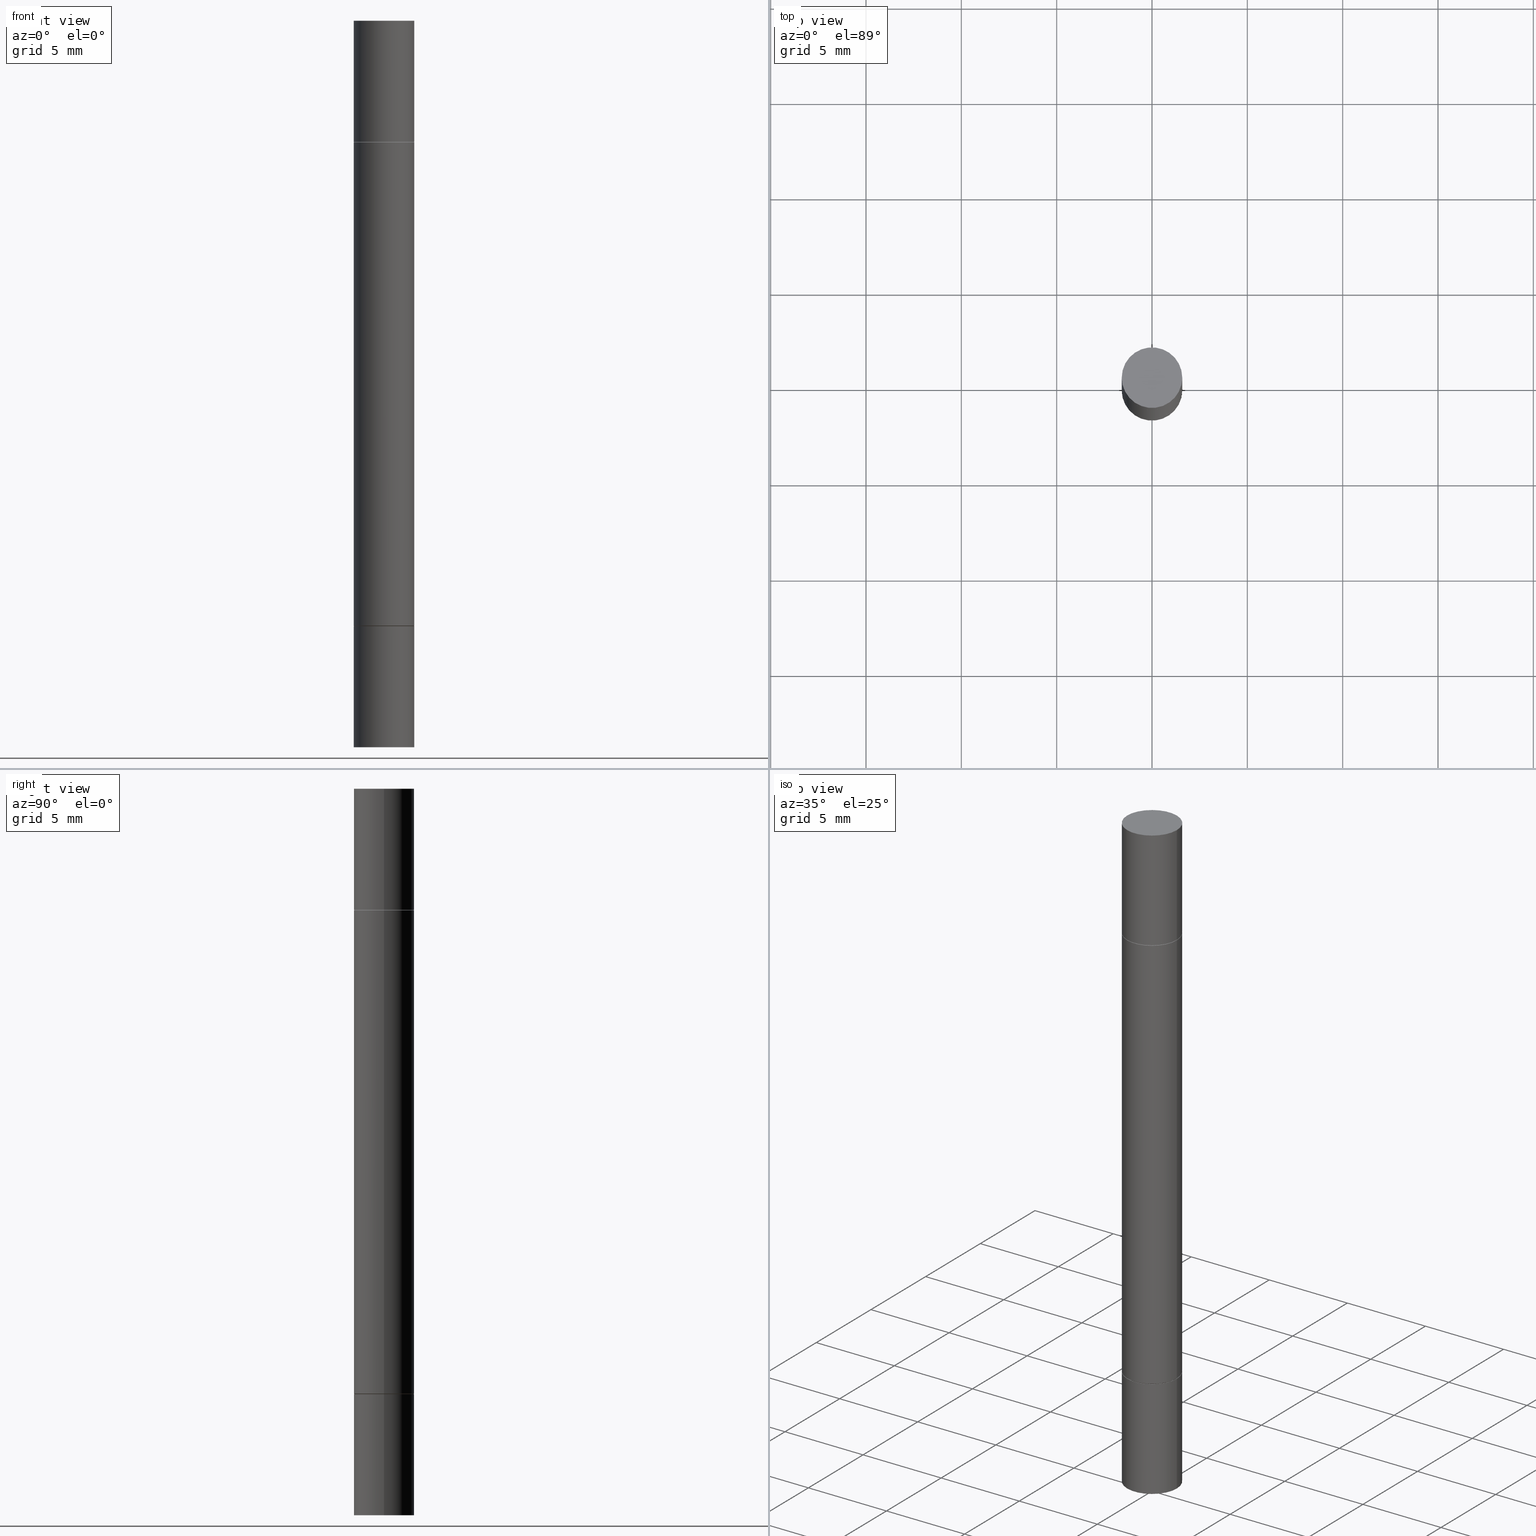
[diagram: canonical four-view strip — front | top / right | iso, engineering-drawing reading convention]
A machine part, canonical four-view strip (front | top / right | iso — engineering-drawing reading convention). The complete STEP part file that produces these views, byte-faithful:
ISO-10303-21;
HEADER;
FILE_DESCRIPTION (( 'STEP AP203' ),
    '1' );
FILE_NAME ('39663.STEP',
    '2024-03-04T15:43:55',
    ( '' ),
    ( '' ),
    'SwSTEP 2.0',
    'SolidWorks 2023',
    '' );
FILE_SCHEMA (( 'CONFIG_CONTROL_DESIGN' ));
ENDSEC;

DATA;
#1 = DIRECTION ( 'NONE',  ( -2.445468806185136597E-29, -3.492890411551752677E-15, -1.000000000000000000 ) ) ;
#2 = CARTESIAN_POINT ( 'NONE',  ( 3.056836007731421306E-29, -8.721657983564820597E-16, -0.2499999999999998057 ) ) ;
#3 = CARTESIAN_POINT ( 'NONE',  ( 3.054390538925235704E-29, -8.756586887680336100E-16, -0.2509999999999998899 ) ) ;
#4 = CC_DESIGN_PERSON_AND_ORGANIZATION_ASSIGNMENT ( #563, #444, ( #68 ) ) ;
#5 = DIRECTION ( 'NONE',  ( 1.000000000000000000, -6.982962677686265922E-15, 9.839502134516470631E-33 ) ) ;
#6 = ADVANCED_FACE ( 'NONE', ( #318 ), #654, .T. ) ;
#7 = PLANE ( 'NONE',  #325 ) ;
#8 = ADVANCED_FACE ( 'NONE', ( #198 ), #224, .T. ) ;
#9 = DIRECTION ( 'NONE',  ( 1.000000000000000000, -6.982962677686265922E-15, 4.876176775795935793E-29 ) ) ;
#10 = ORIENTED_EDGE ( 'NONE', *, *, #440, .T. ) ;
#11 = DIRECTION ( 'NONE',  ( 2.445468806185136597E-29, 3.492890411551752677E-15, 1.000000000000000000 ) ) ;
#12 = DIRECTION ( 'NONE',  ( 2.445468806185136597E-29, 3.492890411551752677E-15, 1.000000000000000000 ) ) ;
#13 = AXIS2_PLACEMENT_3D ( 'NONE', #383, #490, #217 ) ;
#14 = CARTESIAN_POINT ( 'NONE',  ( -0.06250000000000001388, -6.773372051792008208E-18, 2.731847993664278996E-16 ) ) ;
#15 = ORIENTED_EDGE ( 'NONE', *, *, #636, .F. ) ;
#16 = LINE ( 'NONE', #598, #461 ) ;
#17 = FACE_OUTER_BOUND ( 'NONE', #484, .T. ) ;
#18 = CC_DESIGN_DATE_AND_TIME_ASSIGNMENT ( #91, #395, ( #68 ) ) ;
#19 = ORIENTED_EDGE ( 'NONE', *, *, #532, .F. ) ;
#20 = DIRECTION ( 'NONE',  ( -2.445468806185136597E-29, -3.492890411551752677E-15, -1.000000000000000000 ) ) ;
#21 = CARTESIAN_POINT ( 'NONE',  ( 3.668203209277704895E-29, -5.237222008264718177E-15, -1.500000000000000222 ) ) ;
#22 = EDGE_CURVE ( 'NONE', #439, #28, #582, .T. ) ;
#23 = EDGE_LOOP ( 'NONE', ( #381, #185 ) ) ;
#24 = PERSON_AND_ORGANIZATION_ROLE ( 'design_owner' ) ;
#25 = CIRCLE ( 'NONE', #552, 0.06249999999999996531 ) ;
#26 = AXIS2_PLACEMENT_3D ( 'NONE', #257, #11, #102 ) ;
#27 = FACE_OUTER_BOUND ( 'NONE', #425, .T. ) ;
#28 = VERTEX_POINT ( 'NONE', #626 ) ;
#29 = CARTESIAN_POINT ( 'NONE',  ( -0.06250000000000001388, 4.440892098500627148E-16, -3.074334431409317165E-30 ) ) ;
#30 = DIRECTION ( 'NONE',  ( -2.445468806185136597E-29, -3.492890411551752677E-15, -1.000000000000000000 ) ) ;
#31 = ORIENTED_EDGE ( 'NONE', *, *, #228, .T. ) ;
#32 = APPLICATION_CONTEXT ( 'configuration controlled 3d designs of mechanical parts and assemblies' ) ;
#33 = CARTESIAN_POINT ( 'NONE',  ( 0.000000000000000000, 0.000000000000000000, 0.000000000000000000 ) ) ;
#34 = ORIENTED_EDGE ( 'NONE', *, *, #308, .T. ) ;
#35 = SECURITY_CLASSIFICATION_LEVEL ( 'unclassified' ) ;
#36 = LINE ( 'NONE', #82, #592 ) ;
#37 = CIRCLE ( 'NONE', #655, 0.06250000000000001388 ) ;
#38 = APPROVAL_PERSON_ORGANIZATION ( #165, #157, #235 ) ;
#39 = ORIENTED_EDGE ( 'NONE', *, *, #472, .F. ) ;
#40 = DATE_AND_TIME ( #497, #404 ) ;
#41 = FACE_OUTER_BOUND ( 'NONE', #658, .T. ) ;
#42 = DESIGN_CONTEXT ( 'detailed design', #446, 'design' ) ;
#43 = ORIENTED_EDGE ( 'NONE', *, *, #483, .F. ) ;
#44 = CARTESIAN_POINT ( 'NONE',  ( 3.056836007731421306E-29, -8.721657983564820597E-16, -0.2499999999999998057 ) ) ;
#45 = EDGE_LOOP ( 'NONE', ( #19, #512 ) ) ;
#46 = ADVANCED_FACE ( 'NONE', ( #97 ), #676, .T. ) ;
#47 = DIRECTION ( 'NONE',  ( 1.000000000000000000, -6.982962677686269077E-15, 0.000000000000000000 ) ) ;
#48 = VECTOR ( 'NONE', #463, 39.37007874015748854 ) ;
#49 = ORIENTED_EDGE ( 'NONE', *, *, #614, .F. ) ;
#50 = AXIS2_PLACEMENT_3D ( 'NONE', #295, #611, #246 ) ;
#51 = CARTESIAN_POINT ( 'NONE',  ( 0.06150000000000001299, -1.301618003034187616E-15, -0.2499999999999998057 ) ) ;
#52 = CARTESIAN_POINT ( 'NONE',  ( 0.06250000000000005551, -1.312093856123426167E-15, -0.2509999999999998899 ) ) ;
#53 = DIRECTION ( 'NONE',  ( 1.000000000000000000, -6.982962677686268288E-15, 0.000000000000000000 ) ) ;
#54 = FACE_OUTER_BOUND ( 'NONE', #559, .T. ) ;
#55 = CIRCLE ( 'NONE', #258, 0.06150000000000001299 ) ;
#56 = CC_DESIGN_PERSON_AND_ORGANIZATION_ASSIGNMENT ( #347, #130, ( #360 ) ) ;
#57 = VECTOR ( 'NONE', #174, 39.37007874015748143 ) ;
#58 = CARTESIAN_POINT ( 'NONE',  ( 0.06250000000000001388, -4.364351673553918173E-16, 3.047610484872460571E-30 ) ) ;
#59 = ORIENTED_EDGE ( 'NONE', *, *, #628, .F. ) ;
#60 = CARTESIAN_POINT ( 'NONE',  ( 0.06250000000000005551, -1.312093856123426167E-15, -0.2509999999999998899 ) ) ;
#61 = CARTESIAN_POINT ( 'NONE',  ( 3.056836007731421306E-29, -8.721657983564820597E-16, -0.2499999999999998057 ) ) ;
#62 = ORIENTED_EDGE ( 'NONE', *, *, #168, .T. ) ;
#63 = DIRECTION ( 'NONE',  ( -2.445468806185136597E-29, -3.492890411551752677E-15, -1.000000000000000000 ) ) ;
#64 = ORIENTED_EDGE ( 'NONE', *, *, #230, .F. ) ;
#65 = CLOSED_SHELL ( 'NONE', ( #128, #310, #241, #330 ) ) ;
#66 = CARTESIAN_POINT ( 'NONE',  ( -0.06150000000000001299, -4.485613677004229182E-16, -0.2499999999999998057 ) ) ;
#67 = AXIS2_PLACEMENT_3D ( 'NONE', #307, #311, #574 ) ;
#68 = SECURITY_CLASSIFICATION ( '', '', #35 ) ;
#69 = CARTESIAN_POINT ( 'NONE',  ( -0.06250000000000005551, -4.468775639073129860E-16, -0.2509999999999998899 ) ) ;
#70 = EDGE_LOOP ( 'NONE', ( #342, #423, #364, #247 ) ) ;
#71 = DIRECTION ( 'NONE',  ( 0.000000000000000000, 3.492185875197449524E-15, 1.000000000000000000 ) ) ;
#72 = EDGE_CURVE ( 'NONE', #578, #264, #25, .T. ) ;
#73 = DIRECTION ( 'NONE',  ( -1.000000000000000000, 6.982962677686265922E-15, -4.876176775795935793E-29 ) ) ;
#74 = ORIENTED_EDGE ( 'NONE', *, *, #368, .F. ) ;
#75 = ADVANCED_BREP_SHAPE_REPRESENTATION ( '39663', ( #528, #93, #533, #300, #526, #281 ), #634 ) ;
#76 = CARTESIAN_POINT ( 'NONE',  ( -0.06150000000000001299, -4.502451714935327518E-16, -0.2499999999999998057 ) ) ;
#77 = CARTESIAN_POINT ( 'NONE',  ( 0.000000000000000000, -5.238278812796173300E-15, -1.499999999999999778 ) ) ;
#78 = ORIENTED_EDGE ( 'NONE', *, *, #178, .F. ) ;
#79 = AXIS2_PLACEMENT_3D ( 'NONE', #162, #519, #104 ) ;
#80 = CYLINDRICAL_SURFACE ( 'NONE', #120, 0.06249999999999996531 ) ;
#81 = ORIENTED_EDGE ( 'NONE', *, *, #483, .T. ) ;
#82 = CARTESIAN_POINT ( 'NONE',  ( -0.06249999999999996531, -4.809497687935452578E-15, -1.499999999999999778 ) ) ;
#83 = ADVANCED_FACE ( 'NONE', ( #407 ), #378, .T. ) ;
#84 = ORIENTED_EDGE ( 'NONE', *, *, #532, .T. ) ;
#85 = PERSON_AND_ORGANIZATION ( #148, #679 ) ;
#86 = DIRECTION ( 'NONE',  ( 1.000000000000000000, -6.982962677686268288E-15, 0.000000000000000000 ) ) ;
#87 = EDGE_LOOP ( 'NONE', ( #597, #428, #345, #476 ) ) ;
#88 = CARTESIAN_POINT ( 'NONE',  ( 0.06150000000000001299, -1.301618003034187616E-15, -0.2499999999999998057 ) ) ;
#89 = AXIS2_PLACEMENT_3D ( 'NONE', #21, #542, #127 ) ;
#90 = ORIENTED_EDGE ( 'NONE', *, *, #614, .T. ) ;
#91 = DATE_AND_TIME ( #193, #349 ) ;
#92 = CARTESIAN_POINT ( 'NONE',  ( 3.056836007731421306E-29, -8.721657983564820597E-16, -0.2499999999999998057 ) ) ;
#93 = MANIFOLD_SOLID_BREP ( 'Mirror1[1]', #522 ) ;
#94 = DIRECTION ( 'NONE',  ( 1.000000000000000000, -6.982962677686267499E-15, 4.876176775795935793E-29 ) ) ;
#95 = COORDINATED_UNIVERSAL_TIME_OFFSET ( 5, 0, .BEHIND. ) ;
#96 = CARTESIAN_POINT ( 'NONE',  ( 3.056836007731421306E-29, -8.721657983564820597E-16, -0.2499999999999998057 ) ) ;
#97 = FACE_OUTER_BOUND ( 'NONE', #480, .T. ) ;
#98 = CARTESIAN_POINT ( 'NONE',  ( -0.06150000000000001299, -4.502451714935327518E-16, -0.2499999999999998057 ) ) ;
#99 = AXIS2_PLACEMENT_3D ( 'NONE', #372, #354, #153 ) ;
#100 = DIRECTION ( 'NONE',  ( -2.445468806185136597E-29, 3.491481338843145583E-15, 1.000000000000000000 ) ) ;
#101 = AXIS2_PLACEMENT_3D ( 'NONE', #179, #650, #599 ) ;
#102 = DIRECTION ( 'NONE',  ( 1.000000000000000000, -6.982962677686267499E-15, 0.000000000000000000 ) ) ;
#103 = LINE ( 'NONE', #58, #449 ) ;
#104 = DIRECTION ( 'NONE',  ( 1.000000000000000000, -6.982962677686267499E-15, 0.000000000000000000 ) ) ;
#105 = CIRCLE ( 'NONE', #67, 0.06250000000000005551 ) ;
#106 = ORIENTED_EDGE ( 'NONE', *, *, #22, .T. ) ;
#107 = VECTOR ( 'NONE', #280, 39.37007874015748854 ) ;
#108 = DIRECTION ( 'NONE',  ( -2.445468806185136877E-29, 3.491481338843145188E-15, 1.000000000000000000 ) ) ;
#109 = EDGE_CURVE ( 'NONE', #136, #651, #401, .T. ) ;
#110 = CARTESIAN_POINT ( 'NONE',  ( 3.056836007731421306E-29, -8.721657983564820597E-16, -0.2499999999999998057 ) ) ;
#111 = ORIENTED_EDGE ( 'NONE', *, *, #146, .T. ) ;
#112 =( NAMED_UNIT ( * ) PLANE_ANGLE_UNIT ( ) SI_UNIT ( $, .RADIAN. ) );
#113 = ORIENTED_EDGE ( 'NONE', *, *, #277, .F. ) ;
#114 = ORIENTED_EDGE ( 'NONE', *, *, #646, .T. ) ;
#115 = DIRECTION ( 'NONE',  ( -2.445468806185136877E-29, 3.491481338843145188E-15, 1.000000000000000000 ) ) ;
#116 = CARTESIAN_POINT ( 'NONE',  ( 4.364351673554284500E-16, 0.06249999999999478195, -1.500000000000000444 ) ) ;
#117 = EDGE_CURVE ( 'NONE', #583, #561, #541, .T. ) ;
#118 = VERTEX_POINT ( 'NONE', #356 ) ;
#119 = CIRCLE ( 'NONE', #379, 0.06250000000000001388 ) ;
#120 = AXIS2_PLACEMENT_3D ( 'NONE', #494, #30, #546 ) ;
#121 = CARTESIAN_POINT ( 'NONE',  ( 0.06250000000000001388, -4.353783628239354613E-16, 2.731847993664263218E-16 ) ) ;
#122 = FACE_OUTER_BOUND ( 'NONE', #447, .T. ) ;
#123 = ORIENTED_EDGE ( 'NONE', *, *, #206, .F. ) ;
#124 = CARTESIAN_POINT ( 'NONE',  ( 4.364351673554222871E-16, 0.06249999999999565625, -1.250000000000000222 ) ) ;
#125 = ORIENTED_EDGE ( 'NONE', *, *, #646, .F. ) ;
#126 = CARTESIAN_POINT ( 'NONE',  ( 0.000000000000000000, 0.000000000000000000, -0.7499999999999998890 ) ) ;
#127 = DIRECTION ( 'NONE',  ( 1.000000000000000000, -6.982962677686261189E-15, 0.000000000000000000 ) ) ;
#128 = ADVANCED_FACE ( 'NONE', ( #570 ), #352, .T. ) ;
#129 = ORIENTED_EDGE ( 'NONE', *, *, #413, .F. ) ;
#130 = PERSON_AND_ORGANIZATION_ROLE ( 'creator' ) ;
#131 = AXIS2_PLACEMENT_3D ( 'NONE', #635, #209, #207 ) ;
#132 = CARTESIAN_POINT ( 'NONE',  ( 3.056836007731421306E-29, -4.364351673553932471E-15, -1.250000000000000000 ) ) ;
#133 = EDGE_CURVE ( 'NONE', #651, #28, #501, .T. ) ;
#134 = ORIENTED_EDGE ( 'NONE', *, *, #369, .T. ) ;
#135 = CARTESIAN_POINT ( 'NONE',  ( -0.06150000000000001299, -3.922069436713247672E-15, -1.250000000000000000 ) ) ;
#136 = VERTEX_POINT ( 'NONE', #52 ) ;
#137 = CC_DESIGN_DATE_AND_TIME_ASSIGNMENT ( #450, #290, ( #203 ) ) ;
#138 = CARTESIAN_POINT ( 'NONE',  ( 3.056836007731421306E-29, -8.721657983564820597E-16, -0.2499999999999998057 ) ) ;
#139 = ORIENTED_EDGE ( 'NONE', *, *, #286, .F. ) ;
#140 = EDGE_CURVE ( 'NONE', #208, #275, #422, .T. ) ;
#141 = APPROVAL_DATE_TIME ( #40, #633 ) ;
#142 = CYLINDRICAL_SURFACE ( 'NONE', #479, 0.06250000000000001388 ) ;
#143 = AXIS2_PLACEMENT_3D ( 'NONE', #194, #620, #197 ) ;
#144 = VECTOR ( 'NONE', #627, 39.37007874015748143 ) ;
#145 = DIRECTION ( 'NONE',  ( 1.000000000000000000, -6.982962677686264344E-15, 0.000000000000000000 ) ) ;
#146 = EDGE_CURVE ( 'NONE', #561, #578, #517, .T. ) ;
#147 = CYLINDRICAL_SURFACE ( 'NONE', #524, 0.06249999999999996531 ) ;
#148 = PERSON ( 'UNSPECIFIED', 'UNSPECIFIED', 'UNSPECIFIED', ('UNSPECIFIED'), ('UNSPECIFIED'), ('UNSPECIFIED') ) ;
#149 = ORIENTED_EDGE ( 'NONE', *, *, #413, .T. ) ;
#150 = CARTESIAN_POINT ( 'NONE',  ( 4.364351673554222871E-16, 0.06249999999999914652, -0.2500000000000000555 ) ) ;
#151 = DIRECTION ( 'NONE',  ( 2.445468806185136597E-29, 3.492890411551752677E-15, 1.000000000000000000 ) ) ;
#152 = DIRECTION ( 'NONE',  ( 1.000000000000000000, -6.982962677686264344E-15, 0.000000000000000000 ) ) ;
#153 = DIRECTION ( 'NONE',  ( 1.000000000000000000, -6.982962677686268288E-15, 0.000000000000000000 ) ) ;
#154 = AXIS2_PLACEMENT_3D ( 'NONE', #199, #301, #365 ) ;
#155 = FACE_OUTER_BOUND ( 'NONE', #244, .T. ) ;
#156 = DIRECTION ( 'NONE',  ( 2.445468806185136597E-29, 3.492890411551752677E-15, 1.000000000000000000 ) ) ;
#157 = APPROVAL ( #539, 'UNSPECIFIED' ) ;
#158 = ORIENTED_EDGE ( 'NONE', *, *, #368, .T. ) ;
#159 = DIRECTION ( 'NONE',  ( -2.438088387897960049E-29, 3.491481338843145188E-15, 1.000000000000000000 ) ) ;
#160 = CIRCLE ( 'NONE', #553, 0.06150000000000001299 ) ;
#161 = CIRCLE ( 'NONE', #657, 0.06150000000000001299 ) ;
#162 = CARTESIAN_POINT ( 'NONE',  ( 3.668203209277704895E-29, 1.056804531456312920E-18, 2.731847993664263218E-16 ) ) ;
#163 = DIRECTION ( 'NONE',  ( 1.000000000000000000, -6.982962677686264344E-15, 0.000000000000000000 ) ) ;
#164 = VERTEX_POINT ( 'NONE', #263 ) ;
#165 = PERSON_AND_ORGANIZATION ( #148, #679 ) ;
#166 = LINE ( 'NONE', #556, #195 ) ;
#167 = ORIENTED_EDGE ( 'NONE', *, *, #485, .F. ) ;
#168 = EDGE_CURVE ( 'NONE', #561, #583, #391, .T. ) ;
#169 = CARTESIAN_POINT ( 'NONE',  ( 4.364351673554284500E-16, 0.06250000000000001388, 0.000000000000000000 ) ) ;
#170 = EDGE_LOOP ( 'NONE', ( #339, #278 ) ) ;
#171 = DIRECTION ( 'NONE',  ( 1.000000000000000000, 0.000000000000000000, 0.000000000000000000 ) ) ;
#172 = CARTESIAN_POINT ( 'NONE',  ( -0.06249999999999996531, -1.318353721589475380E-15, -0.7499999999999998890 ) ) ;
#173 = VERTEX_POINT ( 'NONE', #510 ) ;
#174 = DIRECTION ( 'NONE',  ( -2.445468806185136877E-29, -3.492890411551753071E-15, -1.000000000000000000 ) ) ;
#175 = CARTESIAN_POINT ( 'NONE',  ( 3.056836007731421306E-29, -8.721657983564820597E-16, -0.2499999999999998057 ) ) ;
#176 = CC_DESIGN_PERSON_AND_ORGANIZATION_ASSIGNMENT ( #388, #248, ( #203 ) ) ;
#177 = ORIENTED_EDGE ( 'NONE', *, *, #380, .F. ) ;
#178 = EDGE_CURVE ( 'NONE', #488, #173, #238, .T. ) ;
#179 = CARTESIAN_POINT ( 'NONE',  ( 0.000000000000000000, -5.238278812796173300E-15, -1.499999999999999778 ) ) ;
#180 = ORIENTED_EDGE ( 'NONE', *, *, #380, .T. ) ;
#181 = PRODUCT ( '39663', '39663', '', ( #595 ) ) ;
#182 = AXIS2_PLACEMENT_3D ( 'NONE', #409, #151, #145 ) ;
#183 = CIRCLE ( 'NONE', #631, 0.06250000000000001388 ) ;
#184 = FACE_OUTER_BOUND ( 'NONE', #70, .T. ) ;
#185 = ORIENTED_EDGE ( 'NONE', *, *, #328, .T. ) ;
#186 = DIRECTION ( 'NONE',  ( -2.438088387897959769E-29, -3.492890411551753071E-15, -1.000000000000000000 ) ) ;
#187 = DIMENSIONAL_EXPONENTS ( 1.000000000000000000, 0.000000000000000000, 0.000000000000000000, 0.000000000000000000, 0.000000000000000000, 0.000000000000000000, 0.000000000000000000 ) ;
#188 = ADVANCED_FACE ( 'NONE', ( #27 ), #660, .T. ) ;
#189 = ORIENTED_EDGE ( 'NONE', *, *, #109, .T. ) ;
#190 = COORDINATED_UNIVERSAL_TIME_OFFSET ( 5, 0, .BEHIND. ) ;
#191 = DIRECTION ( 'NONE',  ( -1.000000000000000000, 6.982962677686265922E-15, -9.839502134516470631E-33 ) ) ;
#192 = CARTESIAN_POINT ( 'NONE',  ( 3.056836007731421306E-29, -8.721657983564820597E-16, -0.2499999999999998057 ) ) ;
#193 = CALENDAR_DATE ( 2024, 4, 3 ) ;
#194 = CARTESIAN_POINT ( 'NONE',  ( 3.668203209277704895E-29, -5.237222008264718177E-15, -1.500000000000000222 ) ) ;
#195 = VECTOR ( 'NONE', #265, 39.37007874015748143 ) ;
#196 = DIRECTION ( 'NONE',  ( 1.000000000000000000, -6.982962677686268288E-15, 0.000000000000000000 ) ) ;
#197 = DIRECTION ( 'NONE',  ( 1.000000000000000000, -6.982962677686261189E-15, 0.000000000000000000 ) ) ;
#198 = FACE_OUTER_BOUND ( 'NONE', #87, .T. ) ;
#199 = CARTESIAN_POINT ( 'NONE',  ( 4.364351673554284500E-16, 0.06250000000000001388, 0.000000000000000000 ) ) ;
#200 = DIRECTION ( 'NONE',  ( 2.445468806185136597E-29, 3.492890411551752677E-15, 1.000000000000000000 ) ) ;
#201 = CARTESIAN_POINT ( 'NONE',  ( 0.06250000000000001388, -4.800786840909324141E-15, -1.250000000000000000 ) ) ;
#202 = AXIS2_PLACEMENT_3D ( 'NONE', #596, #229, #551 ) ;
#203 = PRODUCT_DEFINITION ( 'UNKNOWN', '', #360, #42 ) ;
#204 = CARTESIAN_POINT ( 'NONE',  ( 0.06250000000000001388, -1.308600965711874025E-15, -0.2499999999999998057 ) ) ;
#205 = ADVANCED_FACE ( 'NONE', ( #122 ), #593, .T. ) ;
#206 = EDGE_CURVE ( 'NONE', #398, #534, #119, .T. ) ;
#207 = DIRECTION ( 'NONE',  ( -1.000000000000000000, 6.982962677686265922E-15, -9.839502134516470631E-33 ) ) ;
#208 = VERTEX_POINT ( 'NONE', #389 ) ;
#209 = DIRECTION ( 'NONE',  ( 2.438088387897959769E-29, 3.492890411551753071E-15, 1.000000000000000000 ) ) ;
#210 = VERTEX_POINT ( 'NONE', #326 ) ;
#211 = CC_DESIGN_PERSON_AND_ORGANIZATION_ASSIGNMENT ( #85, #287, ( #360 ) ) ;
#212 = VECTOR ( 'NONE', #465, 39.37007874015748143 ) ;
#213 = AXIS2_PLACEMENT_3D ( 'NONE', #124, #386, #73 ) ;
#214 = ORIENTED_EDGE ( 'NONE', *, *, #624, .T. ) ;
#215 = CIRCLE ( 'NONE', #492, 0.06250000000000001388 ) ;
#216 =( CONVERSION_BASED_UNIT ( 'INCH', #481 ) LENGTH_UNIT ( ) NAMED_UNIT ( #187 ) );
#217 = DIRECTION ( 'NONE',  ( 1.000000000000000000, -6.982962677686268288E-15, 0.000000000000000000 ) ) ;
#218 = ORIENTED_EDGE ( 'NONE', *, *, #328, .F. ) ;
#219 = CARTESIAN_POINT ( 'NONE',  ( 0.06250000000000005551, -4.797295359570480345E-15, -1.248999999999999888 ) ) ;
#220 = DIRECTION ( 'NONE',  ( -2.445468806185136597E-29, 3.491481338843145583E-15, 1.000000000000000000 ) ) ;
#221 = ORIENTED_EDGE ( 'NONE', *, *, #382, .T. ) ;
#222 = FACE_OUTER_BOUND ( 'NONE', #670, .T. ) ;
#223 = ORIENTED_EDGE ( 'NONE', *, *, #140, .T. ) ;
#224 = CONICAL_SURFACE ( 'NONE', #616, 0.06150000000000001299, 0.7853981633974311816 ) ;
#225 = CIRCLE ( 'NONE', #26, 0.06250000000000001388 ) ;
#226 = APPLICATION_PROTOCOL_DEFINITION ( 'international standard', 'config_control_design', 1994, #446 ) ;
#227 = CC_DESIGN_SECURITY_CLASSIFICATION ( #68, ( #360 ) ) ;
#228 = EDGE_CURVE ( 'NONE', #164, #502, #580, .T. ) ;
#229 = DIRECTION ( 'NONE',  ( -2.445468806185136597E-29, -3.492890411551752677E-15, -1.000000000000000000 ) ) ;
#230 = EDGE_CURVE ( 'NONE', #390, #667, #55, .T. ) ;
#231 = ORIENTED_EDGE ( 'NONE', *, *, #567, .F. ) ;
#232 = CARTESIAN_POINT ( 'NONE',  ( 0.06250000000000001388, -5.674713980151564181E-15, -1.499999999999999778 ) ) ;
#233 = DIRECTION ( 'NONE',  ( 1.000000000000000000, -6.982962677686269077E-15, 0.000000000000000000 ) ) ;
#234 = ORIENTED_EDGE ( 'NONE', *, *, #495, .F. ) ;
#235 = APPROVAL_ROLE ( '' ) ;
#236 = CARTESIAN_POINT ( 'NONE',  ( 3.668203209277704895E-29, 1.056804531456312920E-18, 2.731847993664263218E-16 ) ) ;
#237 = ORIENTED_EDGE ( 'NONE', *, *, #277, .T. ) ;
#238 = CIRCLE ( 'NONE', #630, 0.06250000000000001388 ) ;
#239 = COORDINATED_UNIVERSAL_TIME_OFFSET ( 5, 0, .BEHIND. ) ;
#240 = AXIS2_PLACEMENT_3D ( 'NONE', #299, #100, #163 ) ;
#241 = ADVANCED_FACE ( 'NONE', ( #282 ), #486, .F. ) ;
#242 = DIRECTION ( 'NONE',  ( 1.000000000000000000, -6.982962677686266711E-15, 0.000000000000000000 ) ) ;
#243 = AXIS2_PLACEMENT_3D ( 'NONE', #584, #20, #437 ) ;
#244 = EDGE_LOOP ( 'NONE', ( #78, #557 ) ) ;
#245 = DATE_AND_TIME ( #674, #435 ) ;
#246 = DIRECTION ( 'NONE',  ( 1.000000000000000000, -6.982962677686264344E-15, 0.000000000000000000 ) ) ;
#247 = ORIENTED_EDGE ( 'NONE', *, *, #109, .F. ) ;
#248 = PERSON_AND_ORGANIZATION_ROLE ( 'creator' ) ;
#249 = DIRECTION ( 'NONE',  ( 2.438088387897959769E-29, 3.492890411551753071E-15, 1.000000000000000000 ) ) ;
#250 = EDGE_LOOP ( 'NONE', ( #373, #214, #129, #231 ) ) ;
#251 = DIRECTION ( 'NONE',  ( -2.445468806185136597E-29, -3.492890411551752677E-15, -1.000000000000000000 ) ) ;
#252 = CIRCLE ( 'NONE', #641, 0.06150000000000001299 ) ;
#253 = ORIENTED_EDGE ( 'NONE', *, *, #72, .F. ) ;
#254 = CARTESIAN_POINT ( 'NONE',  ( 3.056836007731421306E-29, -4.364351673553932471E-15, -1.250000000000000000 ) ) ;
#255 = CARTESIAN_POINT ( 'NONE',  ( 0.06249999999999996531, -5.674713980151564181E-15, -1.499999999999999778 ) ) ;
#256 = CARTESIAN_POINT ( 'NONE',  ( -0.06250000000000005551, -4.468775639073129860E-16, -0.2509999999999998899 ) ) ;
#257 = CARTESIAN_POINT ( 'NONE',  ( 3.668203209277704895E-29, 1.056804531456312920E-18, 2.731847993664263218E-16 ) ) ;
#258 = AXIS2_PLACEMENT_3D ( 'NONE', #175, #548, #273 ) ;
#259 = AXIS2_PLACEMENT_3D ( 'NONE', #529, #262, #468 ) ;
#260 = FACE_OUTER_BOUND ( 'NONE', #590, .T. ) ;
#261 = VERTEX_POINT ( 'NONE', #69 ) ;
#262 = DIRECTION ( 'NONE',  ( -2.445468806185136597E-29, -3.492890411551752677E-15, -1.000000000000000000 ) ) ;
#263 = CARTESIAN_POINT ( 'NONE',  ( -0.06250000000000001388, -4.356697631059263102E-15, -1.500000000000000222 ) ) ;
#264 = VERTEX_POINT ( 'NONE', #172 ) ;
#265 = DIRECTION ( 'NONE',  ( -2.445468806185136877E-29, -3.492890411551753071E-15, -1.000000000000000000 ) ) ;
#266 = EDGE_LOOP ( 'NONE', ( #565, #31, #496, #123 ) ) ;
#267 = AXIS2_PLACEMENT_3D ( 'NONE', #576, #415, #152 ) ;
#268 = LINE ( 'NONE', #385, #417 ) ;
#269 = LINE ( 'NONE', #588, #572 ) ;
#270 = ORIENTED_EDGE ( 'NONE', *, *, #146, .F. ) ;
#271 = APPLICATION_PROTOCOL_DEFINITION ( 'international standard', 'config_control_design', 1994, #32 ) ;
#272 = ADVANCED_FACE ( 'NONE', ( #338 ), #482, .T. ) ;
#273 = DIRECTION ( 'NONE',  ( 1.000000000000000000, -6.982962677686268288E-15, 0.000000000000000000 ) ) ;
#274 = ADVANCED_FACE ( 'NONE', ( #222 ), #80, .T. ) ;
#275 = VERTEX_POINT ( 'NONE', #442 ) ;
#276 = FACE_OUTER_BOUND ( 'NONE', #594, .T. ) ;
#277 = EDGE_CURVE ( 'NONE', #661, #608, #601, .T. ) ;
#278 = ORIENTED_EDGE ( 'NONE', *, *, #518, .T. ) ;
#279 = AXIS2_PLACEMENT_3D ( 'NONE', #558, #672, #606 ) ;
#280 = DIRECTION ( 'NONE',  ( -0.7071067811865353603, 2.381258160591140710E-15, -0.7071067811865595631 ) ) ;
#281 = AXIS2_PLACEMENT_3D ( 'NONE', #652, #489, #171 ) ;
#282 = FACE_OUTER_BOUND ( 'NONE', #544, .T. ) ;
#283 = ORIENTED_EDGE ( 'NONE', *, *, #636, .T. ) ;
#284 = CARTESIAN_POINT ( 'NONE',  ( 0.000000000000000000, -5.238278812796173300E-15, -1.499999999999999778 ) ) ;
#285 = ORIENTED_EDGE ( 'NONE', *, *, #642, .F. ) ;
#286 = EDGE_CURVE ( 'NONE', #293, #173, #166, .T. ) ;
#287 = PERSON_AND_ORGANIZATION_ROLE ( 'design_supplier' ) ;
#288 = FACE_OUTER_BOUND ( 'NONE', #331, .T. ) ;
#289 = EDGE_LOOP ( 'NONE', ( #125, #585, #327, #158 ) ) ;
#290 = DATE_TIME_ROLE ( 'creation_date' ) ;
#291 = AXIS2_PLACEMENT_3D ( 'NONE', #615, #458, #564 ) ;
#292 = CARTESIAN_POINT ( 'NONE',  ( 0.000000000000000000, -5.238278812796173300E-15, -1.499999999999999778 ) ) ;
#293 = VERTEX_POINT ( 'NONE', #14 ) ;
#294 = CALENDAR_DATE ( 2024, 4, 3 ) ;
#295 = CARTESIAN_POINT ( 'NONE',  ( 3.054390538925235704E-29, -8.756586887680336100E-16, -0.2509999999999998899 ) ) ;
#296 = DIRECTION ( 'NONE',  ( 1.000000000000000000, -6.982962677686268288E-15, 0.000000000000000000 ) ) ;
#297 = DIRECTION ( 'NONE',  ( 1.000000000000000000, -6.982962677686269077E-15, 0.000000000000000000 ) ) ;
#298 = ADVANCED_FACE ( 'NONE', ( #276 ), #438, .T. ) ;
#299 = CARTESIAN_POINT ( 'NONE',  ( 3.054390538925235704E-29, -4.360860192215088675E-15, -1.248999999999999888 ) ) ;
#300 = MANIFOLD_SOLID_BREP ( 'Mirror1[4]', #358 ) ;
#301 = DIRECTION ( 'NONE',  ( 2.438088387897959769E-29, 3.492890411551753071E-15, 1.000000000000000000 ) ) ;
#302 = CLOSED_SHELL ( 'NONE', ( #305, #406, #577, #341, #83, #336, #6, #470 ) ) ;
#303 = AXIS2_PLACEMENT_3D ( 'NONE', #44, #566, #86 ) ;
#304 = APPROVAL_PERSON_ORGANIZATION ( #508, #520, #609 ) ;
#305 = ADVANCED_FACE ( 'NONE', ( #656 ), #503, .T. ) ;
#306 = DIRECTION ( 'NONE',  ( 2.445468806185136597E-29, 3.492890411551752677E-15, 1.000000000000000000 ) ) ;
#307 = CARTESIAN_POINT ( 'NONE',  ( 3.054390538925235704E-29, -4.360860192215088675E-15, -1.248999999999999888 ) ) ;
#308 = EDGE_CURVE ( 'NONE', #118, #210, #269, .T. ) ;
#309 = DIRECTION ( 'NONE',  ( 0.7071067811865353603, -7.407546758114202791E-15, -0.7071067811865595631 ) ) ;
#310 = ADVANCED_FACE ( 'NONE', ( #17 ), #647, .T. ) ;
#311 = DIRECTION ( 'NONE',  ( -2.445468806185136597E-29, 3.491481338843145583E-15, 1.000000000000000000 ) ) ;
#312 = CIRCLE ( 'NONE', #562, 0.06250000000000001388 ) ;
#313 = CC_DESIGN_APPROVAL ( #157, ( #203 ) ) ;
#314 = DIRECTION ( 'NONE',  ( 1.000000000000000000, -6.982962677686268288E-15, 0.000000000000000000 ) ) ;
#315 = DIRECTION ( 'NONE',  ( -2.445468806185136877E-29, -3.492890411551753071E-15, -1.000000000000000000 ) ) ;
#316 = ORIENTED_EDGE ( 'NONE', *, *, #602, .F. ) ;
#317 = LINE ( 'NONE', #29, #525 ) ;
#318 = FACE_OUTER_BOUND ( 'NONE', #586, .T. ) ;
#319 = EDGE_LOOP ( 'NONE', ( #139, #538, #90, #493 ) ) ;
#320 = DIRECTION ( 'NONE',  ( 1.000000000000000000, -6.982962677686267499E-15, 0.000000000000000000 ) ) ;
#321 = DIRECTION ( 'NONE',  ( 2.438088387897960049E-29, -3.491481338843145188E-15, -1.000000000000000000 ) ) ;
#322 = CIRCLE ( 'NONE', #50, 0.06250000000000005551 ) ;
#323 = AXIS2_PLACEMENT_3D ( 'NONE', #284, #451, #445 ) ;
#324 = ORIENTED_EDGE ( 'NONE', *, *, #607, .T. ) ;
#325 = AXIS2_PLACEMENT_3D ( 'NONE', #2, #466, #5 ) ;
#326 = CARTESIAN_POINT ( 'NONE',  ( -0.06250000000000001388, -6.773372051792008208E-18, -0.2499999999999998057 ) ) ;
#327 = ORIENTED_EDGE ( 'NONE', *, *, #642, .T. ) ;
#328 = EDGE_CURVE ( 'NONE', #264, #578, #618, .T. ) ;
#329 = DIRECTION ( 'NONE',  ( 1.000000000000000000, -6.982962677686269077E-15, 0.000000000000000000 ) ) ;
#330 = ADVANCED_FACE ( 'NONE', ( #405 ), #560, .T. ) ;
#331 = EDGE_LOOP ( 'NONE', ( #10, #223 ) ) ;
#332 =( LENGTH_UNIT ( ) NAMED_UNIT ( * ) SI_UNIT ( $, .METRE. ) );
#333 = DIRECTION ( 'NONE',  ( -2.445468806185136597E-29, -3.492890411551752677E-15, -1.000000000000000000 ) ) ;
#334 = ORIENTED_EDGE ( 'NONE', *, *, #117, .F. ) ;
#335 = AXIS2_PLACEMENT_3D ( 'NONE', #116, #321, #430 ) ;
#336 = ADVANCED_FACE ( 'NONE', ( #675 ), #353, .T. ) ;
#337 = APPROVAL_STATUS ( 'not_yet_approved' ) ;
#338 = FACE_OUTER_BOUND ( 'NONE', #605, .T. ) ;
#339 = ORIENTED_EDGE ( 'NONE', *, *, #230, .T. ) ;
#340 = DIRECTION ( 'NONE',  ( -2.445468806185136597E-29, -3.492890411551752677E-15, -1.000000000000000000 ) ) ;
#341 = ADVANCED_FACE ( 'NONE', ( #288 ), #680, .F. ) ;
#342 = ORIENTED_EDGE ( 'NONE', *, *, #607, .F. ) ;
#343 = DATE_AND_TIME ( #294, #367 ) ;
#344 = DIRECTION ( 'NONE',  ( -2.445468806185136597E-29, 3.491481338843145583E-15, 1.000000000000000000 ) ) ;
#345 = ORIENTED_EDGE ( 'NONE', *, *, #117, .T. ) ;
#346 = AXIS2_PLACEMENT_3D ( 'NONE', #531, #1, #459 ) ;
#347 = PERSON_AND_ORGANIZATION ( #148, #679 ) ;
#348 = CIRCLE ( 'NONE', #434, 0.06250000000000001388 ) ;
#349 = LOCAL_TIME ( 10, 43, 55.00000000000000000, #505 ) ;
#350 = DIRECTION ( 'NONE',  ( -2.445468806185136597E-29, 3.491481338843145583E-15, 1.000000000000000000 ) ) ;
#351 = ADVANCED_FACE ( 'NONE', ( #41 ), #142, .T. ) ;
#352 = CYLINDRICAL_SURFACE ( 'NONE', #540, 0.06250000000000001388 ) ;
#353 = CYLINDRICAL_SURFACE ( 'NONE', #323, 0.06249999999999996531 ) ;
#354 = DIRECTION ( 'NONE',  ( -2.445468806185136597E-29, 3.491481338843145583E-15, 1.000000000000000000 ) ) ;
#355 = FACE_OUTER_BOUND ( 'NONE', #45, .T. ) ;
#356 = CARTESIAN_POINT ( 'NONE',  ( -0.06250000000000001388, -6.773372051792008208E-18, 2.731847993664278996E-16 ) ) ;
#357 = CARTESIAN_POINT ( 'NONE',  ( 0.06250000000000001388, -1.308600965711874025E-15, -0.2499999999999998057 ) ) ;
#358 = CLOSED_SHELL ( 'NONE', ( #351, #298, #457, #188 ) ) ;
#359 = AXIS2_PLACEMENT_3D ( 'NONE', #573, #159, #9 ) ;
#360 = PRODUCT_DEFINITION_FORMATION_WITH_SPECIFIED_SOURCE ( 'ANY', '', #181, .NOT_KNOWN. ) ;
#361 = EDGE_LOOP ( 'NONE', ( #316, #74, #189, #648 ) ) ;
#362 = CARTESIAN_POINT ( 'NONE',  ( 0.06250000000000001388, -5.673657175620109846E-15, -1.500000000000000222 ) ) ;
#363 = LINE ( 'NONE', #98, #403 ) ;
#364 = ORIENTED_EDGE ( 'NONE', *, *, #485, .T. ) ;
#365 = DIRECTION ( 'NONE',  ( -1.000000000000000000, 6.982962677686265922E-15, -9.839502134516470631E-33 ) ) ;
#366 = CIRCLE ( 'NONE', #79, 0.06250000000000001388 ) ;
#367 = LOCAL_TIME ( 10, 43, 55.00000000000000000, #190 ) ;
#368 = EDGE_CURVE ( 'NONE', #136, #261, #322, .T. ) ;
#369 = EDGE_CURVE ( 'NONE', #210, #608, #312, .T. ) ;
#370 = ORIENTED_EDGE ( 'NONE', *, *, #469, .F. ) ;
#371 = DIRECTION ( 'NONE',  ( 0.000000000000000000, 1.000000000000000000, -3.492185875197449524E-15 ) ) ;
#372 = CARTESIAN_POINT ( 'NONE',  ( 3.056836007731421306E-29, -4.364351673553932471E-15, -1.250000000000000000 ) ) ;
#373 = ORIENTED_EDGE ( 'NONE', *, *, #469, .T. ) ;
#374 = DIRECTION ( 'NONE',  ( 1.000000000000000000, -6.982962677686268288E-15, 0.000000000000000000 ) ) ;
#375 = DIRECTION ( 'NONE',  ( 2.438088387897959769E-29, 3.492890411551753071E-15, 1.000000000000000000 ) ) ;
#376 = ORIENTED_EDGE ( 'NONE', *, *, #495, .T. ) ;
#377 = DIRECTION ( 'NONE',  ( -1.000000000000000000, 6.982962677686265922E-15, -9.839502134516470631E-33 ) ) ;
#378 = CONICAL_SURFACE ( 'NONE', #477, 0.06150000000000001299, 0.7853981633974311816 ) ;
#379 = AXIS2_PLACEMENT_3D ( 'NONE', #132, #220, #329 ) ;
#380 = EDGE_CURVE ( 'NONE', #583, #264, #36, .T. ) ;
#381 = ORIENTED_EDGE ( 'NONE', *, *, #72, .T. ) ;
#382 = EDGE_CURVE ( 'NONE', #547, #293, #183, .T. ) ;
#383 = CARTESIAN_POINT ( 'NONE',  ( 3.056836007731421306E-29, -4.364351673553932471E-15, -1.250000000000000000 ) ) ;
#384 = ORIENTED_EDGE ( 'NONE', *, *, #228, .F. ) ;
#385 = CARTESIAN_POINT ( 'NONE',  ( 0.06150000000000001299, -4.793803878231638126E-15, -1.250000000000000000 ) ) ;
#386 = DIRECTION ( 'NONE',  ( 2.438088387897960049E-29, -3.491481338843145188E-15, -1.000000000000000000 ) ) ;
#387 = EDGE_LOOP ( 'NONE', ( #549, #452 ) ) ;
#388 = PERSON_AND_ORGANIZATION ( #148, #679 ) ;
#389 = CARTESIAN_POINT ( 'NONE',  ( -0.06150000000000001299, -4.485613677004229182E-16, -0.2499999999999998057 ) ) ;
#390 = VERTEX_POINT ( 'NONE', #88 ) ;
#391 = CIRCLE ( 'NONE', #571, 0.06250000000000005551 ) ;
#392 = APPROVAL_STATUS ( 'not_yet_approved' ) ;
#393 = DIRECTION ( 'NONE',  ( 2.445468806185136597E-29, 3.492890411551752677E-15, 1.000000000000000000 ) ) ;
#394 = ORIENTED_EDGE ( 'NONE', *, *, #487, .T. ) ;
#395 = DATE_TIME_ROLE ( 'classification_date' ) ;
#396 = PRODUCT_RELATED_PRODUCT_CATEGORY ( 'detail', '', ( #181 ) ) ;
#397 = DIRECTION ( 'NONE',  ( 1.000000000000000000, -6.982962677686261189E-15, 0.000000000000000000 ) ) ;
#398 = VERTEX_POINT ( 'NONE', #509 ) ;
#399 = SHAPE_DEFINITION_REPRESENTATION ( #623, #75 ) ;
#400 = DIRECTION ( 'NONE',  ( 1.000000000000000000, -6.982962677686269077E-15, 0.000000000000000000 ) ) ;
#401 = LINE ( 'NONE', #643, #448 ) ;
#402 = APPROVAL_ROLE ( '' ) ;
#403 = VECTOR ( 'NONE', #569, 39.37007874015748854 ) ;
#404 = LOCAL_TIME ( 10, 43, 55.00000000000000000, #613 ) ;
#405 = FACE_OUTER_BOUND ( 'NONE', #266, .T. ) ;
#406 = ADVANCED_FACE ( 'NONE', ( #184 ), #147, .T. ) ;
#407 = FACE_OUTER_BOUND ( 'NONE', #289, .T. ) ;
#408 = DIRECTION ( 'NONE',  ( -2.445468806185136877E-29, -3.492890411551753071E-15, -1.000000000000000000 ) ) ;
#409 = CARTESIAN_POINT ( 'NONE',  ( 3.054390538925235704E-29, -8.756586887680336100E-16, -0.2509999999999998899 ) ) ;
#410 = CARTESIAN_POINT ( 'NONE',  ( -0.06249999999999996531, -4.809497687935452578E-15, -1.499999999999999778 ) ) ;
#411 = EDGE_CURVE ( 'NONE', #173, #488, #37, .T. ) ;
#412 = DIRECTION ( 'NONE',  ( 1.000000000000000000, -6.982962677686264344E-15, 0.000000000000000000 ) ) ;
#413 = EDGE_CURVE ( 'NONE', #534, #398, #348, .T. ) ;
#414 = AXIS2_PLACEMENT_3D ( 'NONE', #77, #333, #478 ) ;
#415 = DIRECTION ( 'NONE',  ( 2.445468806185136597E-29, 3.492890411551752677E-15, 1.000000000000000000 ) ) ;
#416 = AXIS2_PLACEMENT_3D ( 'NONE', #169, #375, #377 ) ;
#417 = VECTOR ( 'NONE', #535, 39.37007874015748854 ) ;
#418 = PLANE ( 'NONE',  #359 ) ;
#419 = CYLINDRICAL_SURFACE ( 'NONE', #243, 0.06250000000000001388 ) ;
#420 = CC_DESIGN_PERSON_AND_ORGANIZATION_ASSIGNMENT ( #587, #24, ( #181 ) ) ;
#421 = CARTESIAN_POINT ( 'NONE',  ( 0.06150000000000001299, -4.793803878231638126E-15, -1.250000000000000000 ) ) ;
#422 = CIRCLE ( 'NONE', #513, 0.06150000000000001299 ) ;
#423 = ORIENTED_EDGE ( 'NONE', *, *, #602, .T. ) ;
#424 = CIRCLE ( 'NONE', #279, 0.06250000000000001388 ) ;
#425 = EDGE_LOOP ( 'NONE', ( #443, #59, #237, #555 ) ) ;
#426 = LINE ( 'NONE', #232, #57 ) ;
#427 = DIRECTION ( 'NONE',  ( -2.445468806185136877E-29, -3.492890411551753071E-15, -1.000000000000000000 ) ) ;
#428 = ORIENTED_EDGE ( 'NONE', *, *, #472, .T. ) ;
#429 = LINE ( 'NONE', #76, #107 ) ;
#430 = DIRECTION ( 'NONE',  ( -1.000000000000000000, 6.982962677686265922E-15, -4.876176775795935793E-29 ) ) ;
#431 = ORIENTED_EDGE ( 'NONE', *, *, #621, .T. ) ;
#432 = EDGE_CURVE ( 'NONE', #608, #210, #424, .T. ) ;
#433 = DIRECTION ( 'NONE',  ( -2.445468806185136877E-29, -3.492890411551753071E-15, -1.000000000000000000 ) ) ;
#434 = AXIS2_PLACEMENT_3D ( 'NONE', #511, #344, #47 ) ;
#435 = LOCAL_TIME ( 10, 43, 55.00000000000000000, #239 ) ;
#436 = ORIENTED_EDGE ( 'NONE', *, *, #168, .F. ) ;
#437 = DIRECTION ( 'NONE',  ( 1.000000000000000000, -6.982962677686261189E-15, 0.000000000000000000 ) ) ;
#438 = PLANE ( 'NONE',  #416 ) ;
#439 = VERTEX_POINT ( 'NONE', #135 ) ;
#440 = EDGE_CURVE ( 'NONE', #275, #208, #514, .T. ) ;
#441 = DIRECTION ( 'NONE',  ( 2.445468806185136597E-29, 3.492890411551752677E-15, 1.000000000000000000 ) ) ;
#442 = CARTESIAN_POINT ( 'NONE',  ( 0.06150000000000001299, -1.301618003034187616E-15, -0.2499999999999998057 ) ) ;
#443 = ORIENTED_EDGE ( 'NONE', *, *, #308, .F. ) ;
#444 = PERSON_AND_ORGANIZATION_ROLE ( 'classification_officer' ) ;
#445 = DIRECTION ( 'NONE',  ( 1.000000000000000000, -6.982962677686266711E-15, 0.000000000000000000 ) ) ;
#446 = APPLICATION_CONTEXT ( 'configuration controlled 3d designs of mechanical parts and assemblies' ) ;
#447 = EDGE_LOOP ( 'NONE', ( #334, #180, #253, #270 ) ) ;
#448 = VECTOR ( 'NONE', #315, 39.37007874015748143 ) ;
#449 = VECTOR ( 'NONE', #108, 39.37007874015748143 ) ;
#450 = DATE_AND_TIME ( #456, #619 ) ;
#451 = DIRECTION ( 'NONE',  ( -2.445468806185136597E-29, -3.492890411551752677E-15, -1.000000000000000000 ) ) ;
#452 = ORIENTED_EDGE ( 'NONE', *, *, #369, .F. ) ;
#453 = APPROVAL_DATE_TIME ( #245, #157 ) ;
#454 = CARTESIAN_POINT ( 'NONE',  ( 0.000000000000000000, -5.238278812796173300E-15, -1.499999999999999778 ) ) ;
#455 = CARTESIAN_POINT ( 'NONE',  ( -0.06150000000000001299, -3.927367891061470863E-15, -1.250000000000000000 ) ) ;
#456 = CALENDAR_DATE ( 2024, 4, 3 ) ;
#457 = ADVANCED_FACE ( 'NONE', ( #462 ), #506, .F. ) ;
#458 = DIRECTION ( 'NONE',  ( -0.000000000000000000, -3.492185875197449130E-15, -1.000000000000000000 ) ) ;
#459 = DIRECTION ( 'NONE',  ( 1.000000000000000000, -6.982962677686268288E-15, 0.000000000000000000 ) ) ;
#460 = AXIS2_PLACEMENT_3D ( 'NONE', #92, #186, #625 ) ;
#461 = VECTOR ( 'NONE', #662, 39.37007874015748854 ) ;
#462 = FACE_OUTER_BOUND ( 'NONE', #387, .T. ) ;
#463 = DIRECTION ( 'NONE',  ( -0.7071067811865353603, 7.493145998870309984E-15, 0.7071067811865595631 ) ) ;
#464 = FACE_OUTER_BOUND ( 'NONE', #170, .T. ) ;
#465 = DIRECTION ( 'NONE',  ( -2.445468806185136877E-29, -3.492890411551753071E-15, -1.000000000000000000 ) ) ;
#466 = DIRECTION ( 'NONE',  ( -2.438088387897959769E-29, -3.492890411551753071E-15, -1.000000000000000000 ) ) ;
#467 = CLOSED_SHELL ( 'NONE', ( #272, #575, #536, #610 ) ) ;
#468 = DIRECTION ( 'NONE',  ( 1.000000000000000000, -6.982962677686268288E-15, 0.000000000000000000 ) ) ;
#469 = EDGE_CURVE ( 'NONE', #502, #164, #666, .T. ) ;
#470 = ADVANCED_FACE ( 'NONE', ( #355 ), #418, .F. ) ;
#471 = FACE_OUTER_BOUND ( 'NONE', #319, .T. ) ;
#472 = EDGE_CURVE ( 'NONE', #667, #583, #363, .T. ) ;
#473 = ORIENTED_EDGE ( 'NONE', *, *, #206, .T. ) ;
#474 = LINE ( 'NONE', #410, #144 ) ;
#475 = DIRECTION ( 'NONE',  ( -2.445468806185136597E-29, -3.492890411551752677E-15, -1.000000000000000000 ) ) ;
#476 = ORIENTED_EDGE ( 'NONE', *, *, #487, .F. ) ;
#477 = AXIS2_PLACEMENT_3D ( 'NONE', #192, #475, #196 ) ;
#478 = DIRECTION ( 'NONE',  ( 1.000000000000000000, -6.982962677686261189E-15, 0.000000000000000000 ) ) ;
#479 = AXIS2_PLACEMENT_3D ( 'NONE', #454, #251, #397 ) ;
#480 = EDGE_LOOP ( 'NONE', ( #39, #64, #394, #62 ) ) ;
#481 = LENGTH_MEASURE_WITH_UNIT ( LENGTH_MEASURE( 0.02539999999999999897 ), #332 );
#482 = CYLINDRICAL_SURFACE ( 'NONE', #101, 0.06250000000000001388 ) ;
#483 = EDGE_CURVE ( 'NONE', #293, #547, #225, .T. ) ;
#484 = EDGE_LOOP ( 'NONE', ( #370, #384 ) ) ;
#485 = EDGE_CURVE ( 'NONE', #28, #651, #105, .T. ) ;
#486 = PLANE ( 'NONE',  #213 ) ;
#487 = EDGE_CURVE ( 'NONE', #390, #561, #640, .T. ) ;
#488 = VERTEX_POINT ( 'NONE', #357 ) ;
#489 = DIRECTION ( 'NONE',  ( 0.000000000000000000, 0.000000000000000000, 1.000000000000000000 ) ) ;
#490 = DIRECTION ( 'NONE',  ( -2.445468806185136597E-29, 3.491481338843145583E-15, 1.000000000000000000 ) ) ;
#491 = VECTOR ( 'NONE', #433, 39.37007874015748143 ) ;
#492 = AXIS2_PLACEMENT_3D ( 'NONE', #545, #441, #320 ) ;
#493 = ORIENTED_EDGE ( 'NONE', *, *, #178, .T. ) ;
#494 = CARTESIAN_POINT ( 'NONE',  ( 0.000000000000000000, -5.238278812796173300E-15, -1.499999999999999778 ) ) ;
#495 = EDGE_CURVE ( 'NONE', #118, #661, #366, .T. ) ;
#496 = ORIENTED_EDGE ( 'NONE', *, *, #567, .T. ) ;
#497 = CALENDAR_DATE ( 2024, 4, 3 ) ;
#498 = DIRECTION ( 'NONE',  ( 2.445468806185136597E-29, 3.492890411551752677E-15, 1.000000000000000000 ) ) ;
#499 = ORIENTED_EDGE ( 'NONE', *, *, #628, .T. ) ;
#500 = DIRECTION ( 'NONE',  ( 1.000000000000000000, -6.982962677686267499E-15, 4.876176775795935793E-29 ) ) ;
#501 = CIRCLE ( 'NONE', #240, 0.06250000000000005551 ) ;
#502 = VERTEX_POINT ( 'NONE', #362 ) ;
#503 = CONICAL_SURFACE ( 'NONE', #13, 0.06150000000000001299, 0.7853981633974311816 ) ;
#504 = APPROVAL_PERSON_ORGANIZATION ( #671, #633, #402 ) ;
#505 = COORDINATED_UNIVERSAL_TIME_OFFSET ( 5, 0, .BEHIND. ) ;
#506 = PLANE ( 'NONE',  #603 ) ;
#507 = VERTEX_POINT ( 'NONE', #421 ) ;
#508 = PERSON_AND_ORGANIZATION ( #148, #679 ) ;
#509 = CARTESIAN_POINT ( 'NONE',  ( -0.06250000000000001388, -4.356697631059263102E-15, -1.250000000000000000 ) ) ;
#510 = CARTESIAN_POINT ( 'NONE',  ( -0.06250000000000001388, -6.773372051792008208E-18, -0.2499999999999998057 ) ) ;
#511 = CARTESIAN_POINT ( 'NONE',  ( 3.056836007731421306E-29, -4.364351673553932471E-15, -1.250000000000000000 ) ) ;
#512 = ORIENTED_EDGE ( 'NONE', *, *, #621, .F. ) ;
#513 = AXIS2_PLACEMENT_3D ( 'NONE', #61, #306, #296 ) ;
#514 = CIRCLE ( 'NONE', #303, 0.06150000000000001299 ) ;
#515 = CONICAL_SURFACE ( 'NONE', #259, 0.06150000000000001299, 0.7853981633974311816 ) ;
#516 = CARTESIAN_POINT ( 'NONE',  ( 3.056836007731421306E-29, -8.721657983564820597E-16, -0.2499999999999998057 ) ) ;
#517 = LINE ( 'NONE', #255, #212 ) ;
#518 = EDGE_CURVE ( 'NONE', #667, #390, #160, .T. ) ;
#519 = DIRECTION ( 'NONE',  ( 2.445468806185136597E-29, 3.492890411551752677E-15, 1.000000000000000000 ) ) ;
#520 = APPROVAL ( #337, 'UNSPECIFIED' ) ;
#521 = PLANE ( 'NONE',  #154 ) ;
#522 = CLOSED_SHELL ( 'NONE', ( #205, #8, #653, #589, #46, #274 ) ) ;
#523 = PLANE ( 'NONE',  #131 ) ;
#524 = AXIS2_PLACEMENT_3D ( 'NONE', #292, #340, #242 ) ;
#525 = VECTOR ( 'NONE', #115, 39.37007874015748143 ) ;
#526 = MANIFOLD_SOLID_BREP ( 'Combine1', #302 ) ;
#527 = ORIENTED_EDGE ( 'NONE', *, *, #286, .T. ) ;
#528 = MANIFOLD_SOLID_BREP ( 'Body-Move/Copy2[1]', #65 ) ;
#529 = CARTESIAN_POINT ( 'NONE',  ( 3.056836007731421306E-29, -8.721657983564820597E-16, -0.2499999999999998057 ) ) ;
#530 = UNCERTAINTY_MEASURE_WITH_UNIT (LENGTH_MEASURE( 1.000000000000000082E-05 ), #216, 'distance_accuracy_value', 'NONE');
#531 = CARTESIAN_POINT ( 'NONE',  ( 3.056836007731421306E-29, -8.721657983564820597E-16, -0.2499999999999998057 ) ) ;
#532 = EDGE_CURVE ( 'NONE', #507, #439, #252, .T. ) ;
#533 = MANIFOLD_SOLID_BREP ( 'Mirror1[3]', #467 ) ;
#534 = VERTEX_POINT ( 'NONE', #201 ) ;
#535 = DIRECTION ( 'NONE',  ( 0.7071067811865353603, -2.468850131082130054E-15, 0.7071067811865595631 ) ) ;
#536 = ADVANCED_FACE ( 'NONE', ( #155 ), #523, .F. ) ;
#537 = CARTESIAN_POINT ( 'NONE',  ( 3.056836007731421306E-29, -8.721657983564820597E-16, -0.2499999999999998057 ) ) ;
#538 = ORIENTED_EDGE ( 'NONE', *, *, #382, .F. ) ;
#539 = APPROVAL_STATUS ( 'not_yet_approved' ) ;
#540 = AXIS2_PLACEMENT_3D ( 'NONE', #629, #622, #94 ) ;
#541 = CIRCLE ( 'NONE', #182, 0.06250000000000005551 ) ;
#542 = DIRECTION ( 'NONE',  ( -2.445468806185136597E-29, 3.491481338843145583E-15, 1.000000000000000000 ) ) ;
#543 = CC_DESIGN_APPROVAL ( #520, ( #68 ) ) ;
#544 = EDGE_LOOP ( 'NONE', ( #149, #473 ) ) ;
#545 = CARTESIAN_POINT ( 'NONE',  ( 3.668203209277704895E-29, 1.056804531456312920E-18, 2.731847993664263218E-16 ) ) ;
#546 = DIRECTION ( 'NONE',  ( 1.000000000000000000, -6.982962677686266711E-15, 0.000000000000000000 ) ) ;
#547 = VERTEX_POINT ( 'NONE', #638 ) ;
#548 = DIRECTION ( 'NONE',  ( 2.445468806185136597E-29, 3.492890411551752677E-15, 1.000000000000000000 ) ) ;
#549 = ORIENTED_EDGE ( 'NONE', *, *, #432, .F. ) ;
#550 = FACE_OUTER_BOUND ( 'NONE', #23, .T. ) ;
#551 = DIRECTION ( 'NONE',  ( 1.000000000000000000, -6.982962677686266711E-15, 0.000000000000000000 ) ) ;
#552 = AXIS2_PLACEMENT_3D ( 'NONE', #677, #617, #673 ) ;
#553 = AXIS2_PLACEMENT_3D ( 'NONE', #516, #156, #53 ) ;
#554 = AXIS2_PLACEMENT_3D ( 'NONE', #126, #71, #371 ) ;
#555 = ORIENTED_EDGE ( 'NONE', *, *, #432, .T. ) ;
#556 = CARTESIAN_POINT ( 'NONE',  ( -0.06250000000000001388, -4.809497687935452578E-15, -1.499999999999999778 ) ) ;
#557 = ORIENTED_EDGE ( 'NONE', *, *, #411, .F. ) ;
#558 = CARTESIAN_POINT ( 'NONE',  ( 3.056836007731421306E-29, -8.721657983564820597E-16, -0.2499999999999998057 ) ) ;
#559 = EDGE_LOOP ( 'NONE', ( #664, #114, #324, #285 ) ) ;
#560 = CYLINDRICAL_SURFACE ( 'NONE', #632, 0.06250000000000001388 ) ;
#561 = VERTEX_POINT ( 'NONE', #60 ) ;
#562 = AXIS2_PLACEMENT_3D ( 'NONE', #96, #498, #400 ) ;
#563 = PERSON_AND_ORGANIZATION ( #148, #679 ) ;
#564 = DIRECTION ( 'NONE',  ( 0.000000000000000000, 1.000000000000000000, -4.370956789862823516E-15 ) ) ;
#565 = ORIENTED_EDGE ( 'NONE', *, *, #624, .F. ) ;
#566 = DIRECTION ( 'NONE',  ( 2.445468806185136597E-29, 3.492890411551752677E-15, 1.000000000000000000 ) ) ;
#567 = EDGE_CURVE ( 'NONE', #502, #534, #103, .T. ) ;
#568 = DIRECTION ( 'NONE',  ( 1.000000000000000000, -6.982962677686268288E-15, 0.000000000000000000 ) ) ;
#569 = DIRECTION ( 'NONE',  ( -0.7071067811865353603, 2.381258160591140710E-15, -0.7071067811865595631 ) ) ;
#570 = FACE_OUTER_BOUND ( 'NONE', #250, .T. ) ;
#571 = AXIS2_PLACEMENT_3D ( 'NONE', #3, #200, #412 ) ;
#572 = VECTOR ( 'NONE', #427, 39.37007874015748143 ) ;
#573 = CARTESIAN_POINT ( 'NONE',  ( 3.056836007731421306E-29, -4.364351673553932471E-15, -1.250000000000000000 ) ) ;
#574 = DIRECTION ( 'NONE',  ( 1.000000000000000000, -6.982962677686264344E-15, 0.000000000000000000 ) ) ;
#575 = ADVANCED_FACE ( 'NONE', ( #260 ), #521, .T. ) ;
#576 = CARTESIAN_POINT ( 'NONE',  ( 3.054390538925235704E-29, -8.756586887680336100E-16, -0.2509999999999998899 ) ) ;
#577 = ADVANCED_FACE ( 'NONE', ( #54 ), #515, .T. ) ;
#578 = VERTEX_POINT ( 'NONE', #637 ) ;
#579 = DIRECTION ( 'NONE',  ( -2.445468806185136597E-29, 3.491481338843145583E-15, 1.000000000000000000 ) ) ;
#580 = CIRCLE ( 'NONE', #89, 0.06250000000000001388 ) ;
#581 = CIRCLE ( 'NONE', #267, 0.06250000000000005551 ) ;
#582 = LINE ( 'NONE', #455, #48 ) ;
#583 = VERTEX_POINT ( 'NONE', #256 ) ;
#584 = CARTESIAN_POINT ( 'NONE',  ( 0.000000000000000000, -5.238278812796173300E-15, -1.499999999999999778 ) ) ;
#585 = ORIENTED_EDGE ( 'NONE', *, *, #440, .F. ) ;
#586 = EDGE_LOOP ( 'NONE', ( #644, #431, #283, #167 ) ) ;
#587 = PERSON_AND_ORGANIZATION ( #148, #679 ) ;
#588 = CARTESIAN_POINT ( 'NONE',  ( -0.06250000000000001388, -4.809497687935452578E-15, -1.499999999999999778 ) ) ;
#589 = ADVANCED_FACE ( 'NONE', ( #464 ), #7, .F. ) ;
#590 = EDGE_LOOP ( 'NONE', ( #221, #81 ) ) ;
#591 = DIRECTION ( 'NONE',  ( -2.445468806185136597E-29, 3.491481338843145583E-15, 1.000000000000000000 ) ) ;
#592 = VECTOR ( 'NONE', #408, 39.37007874015748143 ) ;
#593 = CYLINDRICAL_SURFACE ( 'NONE', #202, 0.06249999999999996531 ) ;
#594 = EDGE_LOOP ( 'NONE', ( #499, #376 ) ) ;
#595 = MECHANICAL_CONTEXT ( 'NONE', #32, 'mechanical' ) ;
#596 = CARTESIAN_POINT ( 'NONE',  ( 0.000000000000000000, -5.238278812796173300E-15, -1.499999999999999778 ) ) ;
#597 = ORIENTED_EDGE ( 'NONE', *, *, #518, .F. ) ;
#598 = CARTESIAN_POINT ( 'NONE',  ( 0.06150000000000001299, -1.301618003034187616E-15, -0.2499999999999998057 ) ) ;
#599 = DIRECTION ( 'NONE',  ( 1.000000000000000000, -6.982962677686261189E-15, 0.000000000000000000 ) ) ;
#600 = ORIENTED_EDGE ( 'NONE', *, *, #411, .T. ) ;
#601 = LINE ( 'NONE', #663, #491 ) ;
#602 = EDGE_CURVE ( 'NONE', #261, #28, #474, .T. ) ;
#603 = AXIS2_PLACEMENT_3D ( 'NONE', #150, #249, #191 ) ;
#604 = CC_DESIGN_APPROVAL ( #633, ( #360 ) ) ;
#605 = EDGE_LOOP ( 'NONE', ( #43, #527, #600, #49 ) ) ;
#606 = DIRECTION ( 'NONE',  ( 1.000000000000000000, -6.982962677686269077E-15, 0.000000000000000000 ) ) ;
#607 = EDGE_CURVE ( 'NONE', #261, #136, #581, .T. ) ;
#608 = VERTEX_POINT ( 'NONE', #204 ) ;
#609 = APPROVAL_ROLE ( '' ) ;
#610 = ADVANCED_FACE ( 'NONE', ( #471 ), #419, .T. ) ;
#611 = DIRECTION ( 'NONE',  ( 2.445468806185136597E-29, 3.492890411551752677E-15, 1.000000000000000000 ) ) ;
#612 = EDGE_LOOP ( 'NONE', ( #84, #106, #639, #15 ) ) ;
#613 = COORDINATED_UNIVERSAL_TIME_OFFSET ( 5, 0, .BEHIND. ) ;
#614 = EDGE_CURVE ( 'NONE', #547, #488, #426, .T. ) ;
#615 = CARTESIAN_POINT ( 'NONE',  ( 1.834101604638852167E-29, -2.618611004132358694E-15, -0.7499999999999998890 ) ) ;
#616 = AXIS2_PLACEMENT_3D ( 'NONE', #537, #63, #568 ) ;
#617 = DIRECTION ( 'NONE',  ( -0.000000000000000000, -3.492185875197449130E-15, -1.000000000000000000 ) ) ;
#618 = CIRCLE ( 'NONE', #291, 0.06249999999999996531 ) ;
#619 = LOCAL_TIME ( 10, 43, 55.00000000000000000, #95 ) ;
#620 = DIRECTION ( 'NONE',  ( -2.445468806185136597E-29, 3.491481338843145583E-15, 1.000000000000000000 ) ) ;
#621 = EDGE_CURVE ( 'NONE', #439, #507, #161, .T. ) ;
#622 = DIRECTION ( 'NONE',  ( -2.445468806185136597E-29, 3.491481338843145583E-15, 1.000000000000000000 ) ) ;
#623 = PRODUCT_DEFINITION_SHAPE ( 'NONE', 'NONE',  #203 ) ;
#624 = EDGE_CURVE ( 'NONE', #164, #398, #317, .T. ) ;
#625 = DIRECTION ( 'NONE',  ( 1.000000000000000000, -6.982962677686265922E-15, 9.839502134516470631E-33 ) ) ;
#626 = CARTESIAN_POINT ( 'NONE',  ( -0.06250000000000005551, -2.189829879271635210E-15, -1.248999999999999888 ) ) ;
#627 = DIRECTION ( 'NONE',  ( -2.445468806185136877E-29, -3.492890411551753071E-15, -1.000000000000000000 ) ) ;
#628 = EDGE_CURVE ( 'NONE', #661, #118, #215, .T. ) ;
#629 = CARTESIAN_POINT ( 'NONE',  ( 0.000000000000000000, 0.000000000000000000, 0.000000000000000000 ) ) ;
#630 = AXIS2_PLACEMENT_3D ( 'NONE', #110, #12, #233 ) ;
#631 = AXIS2_PLACEMENT_3D ( 'NONE', #236, #669, #665 ) ;
#632 = AXIS2_PLACEMENT_3D ( 'NONE', #33, #350, #500 ) ;
#633 = APPROVAL ( #392, 'UNSPECIFIED' ) ;
#634 =( GEOMETRIC_REPRESENTATION_CONTEXT ( 3 ) GLOBAL_UNCERTAINTY_ASSIGNED_CONTEXT ( ( #530 ) ) GLOBAL_UNIT_ASSIGNED_CONTEXT ( ( #216, #112, #649 ) ) REPRESENTATION_CONTEXT ( 'NONE', 'WORKASPACE' ) );
#635 = CARTESIAN_POINT ( 'NONE',  ( 4.364351673554222871E-16, 0.06249999999999914652, -0.2500000000000000555 ) ) ;
#636 = EDGE_CURVE ( 'NONE', #507, #651, #268, .T. ) ;
#637 = CARTESIAN_POINT ( 'NONE',  ( 0.06249999999999996531, -2.183570013805587378E-15, -0.7499999999999998890 ) ) ;
#638 = CARTESIAN_POINT ( 'NONE',  ( 0.06250000000000001388, -4.353783628239354613E-16, 2.731847993664263218E-16 ) ) ;
#639 = ORIENTED_EDGE ( 'NONE', *, *, #133, .F. ) ;
#640 = LINE ( 'NONE', #51, #678 ) ;
#641 = AXIS2_PLACEMENT_3D ( 'NONE', #254, #579, #314 ) ;
#642 = EDGE_CURVE ( 'NONE', #275, #136, #16, .T. ) ;
#643 = CARTESIAN_POINT ( 'NONE',  ( 0.06249999999999996531, -5.674713980151564181E-15, -1.499999999999999778 ) ) ;
#644 = ORIENTED_EDGE ( 'NONE', *, *, #22, .F. ) ;
#645 = PLANE ( 'NONE',  #554 ) ;
#646 = EDGE_CURVE ( 'NONE', #208, #261, #429, .T. ) ;
#647 = PLANE ( 'NONE',  #335 ) ;
#648 = ORIENTED_EDGE ( 'NONE', *, *, #133, .T. ) ;
#649 =( NAMED_UNIT ( * ) SI_UNIT ( $, .STERADIAN. ) SOLID_ANGLE_UNIT ( ) );
#650 = DIRECTION ( 'NONE',  ( -2.445468806185136597E-29, -3.492890411551752677E-15, -1.000000000000000000 ) ) ;
#651 = VERTEX_POINT ( 'NONE', #219 ) ;
#652 = CARTESIAN_POINT ( 'NONE',  ( 0.000000000000000000, 0.000000000000000000, 0.000000000000000000 ) ) ;
#653 = ADVANCED_FACE ( 'NONE', ( #550 ), #645, .F. ) ;
#654 = CONICAL_SURFACE ( 'NONE', #99, 0.06150000000000001299, 0.7853981633974311816 ) ;
#655 = AXIS2_PLACEMENT_3D ( 'NONE', #138, #393, #297 ) ;
#656 = FACE_OUTER_BOUND ( 'NONE', #612, .T. ) ;
#657 = AXIS2_PLACEMENT_3D ( 'NONE', #659, #591, #374 ) ;
#658 = EDGE_LOOP ( 'NONE', ( #234, #34, #134, #113 ) ) ;
#659 = CARTESIAN_POINT ( 'NONE',  ( 3.056836007731421306E-29, -4.364351673553932471E-15, -1.250000000000000000 ) ) ;
#660 = CYLINDRICAL_SURFACE ( 'NONE', #414, 0.06250000000000001388 ) ;
#661 = VERTEX_POINT ( 'NONE', #121 ) ;
#662 = DIRECTION ( 'NONE',  ( 0.7071067811865353603, -7.407546758114202791E-15, -0.7071067811865595631 ) ) ;
#663 = CARTESIAN_POINT ( 'NONE',  ( 0.06250000000000001388, -5.674713980151564181E-15, -1.499999999999999778 ) ) ;
#664 = ORIENTED_EDGE ( 'NONE', *, *, #140, .F. ) ;
#665 = DIRECTION ( 'NONE',  ( 1.000000000000000000, -6.982962677686267499E-15, 0.000000000000000000 ) ) ;
#666 = CIRCLE ( 'NONE', #143, 0.06250000000000001388 ) ;
#667 = VERTEX_POINT ( 'NONE', #66 ) ;
#668 = APPROVAL_DATE_TIME ( #343, #520 ) ;
#669 = DIRECTION ( 'NONE',  ( 2.445468806185136597E-29, 3.492890411551752677E-15, 1.000000000000000000 ) ) ;
#670 = EDGE_LOOP ( 'NONE', ( #177, #436, #111, #218 ) ) ;
#671 = PERSON_AND_ORGANIZATION ( #148, #679 ) ;
#672 = DIRECTION ( 'NONE',  ( 2.445468806185136597E-29, 3.492890411551752677E-15, 1.000000000000000000 ) ) ;
#673 = DIRECTION ( 'NONE',  ( 0.000000000000000000, 1.000000000000000000, -4.370956789862823516E-15 ) ) ;
#674 = CALENDAR_DATE ( 2024, 4, 3 ) ;
#675 = FACE_OUTER_BOUND ( 'NONE', #361, .T. ) ;
#676 = CONICAL_SURFACE ( 'NONE', #346, 0.06150000000000001299, 0.7853981633974311816 ) ;
#677 = CARTESIAN_POINT ( 'NONE',  ( 1.834101604638852167E-29, -2.618611004132358694E-15, -0.7499999999999998890 ) ) ;
#678 = VECTOR ( 'NONE', #309, 39.37007874015748854 ) ;
#679 = ORGANIZATION ( 'UNSPECIFIED', 'UNSPECIFIED', '' ) ;
#680 = PLANE ( 'NONE',  #460 ) ;
ENDSEC;
END-ISO-10303-21;
